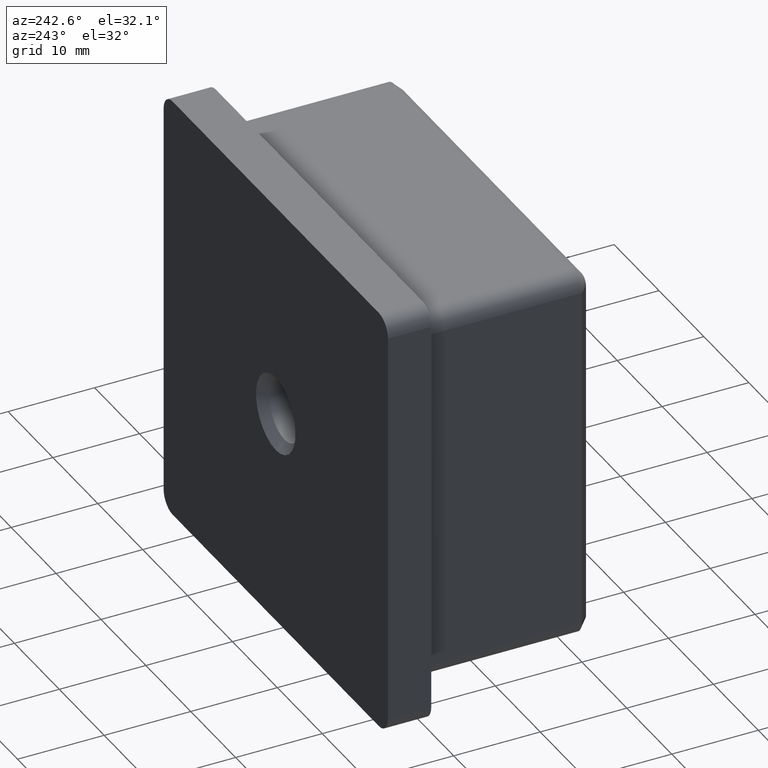
[diagram: clean part render]
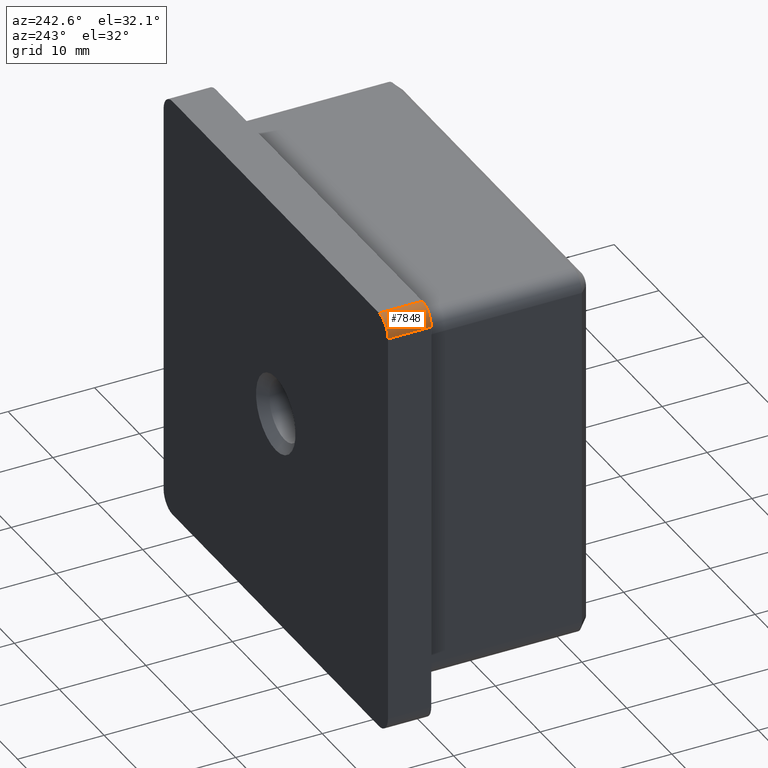
[diagram: same view with one face highlighted and labeled with its STEP entity id]
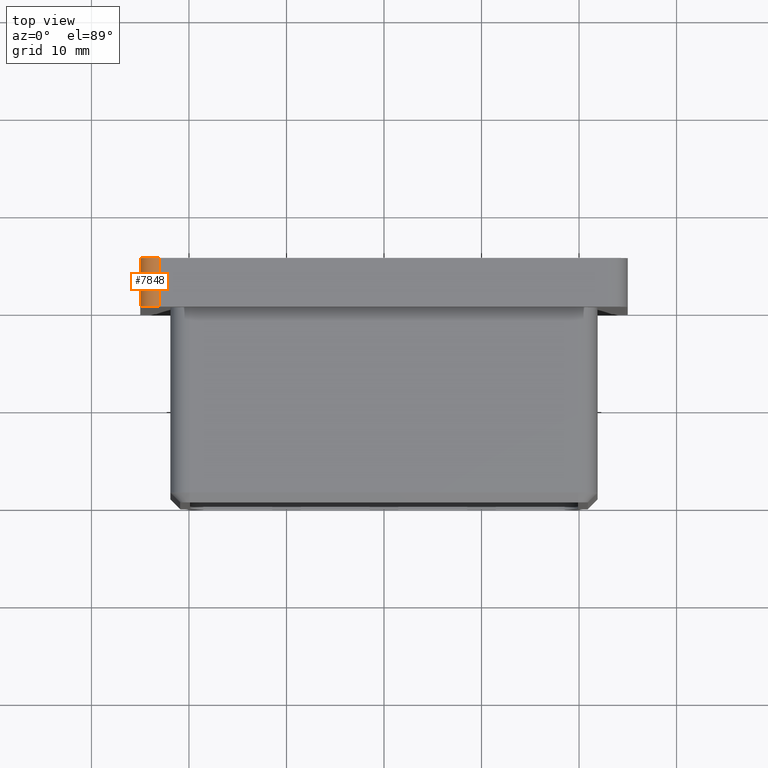
[diagram: same view with one face highlighted and labeled with its STEP entity id]
A machine part, auxiliary view. The second image highlights one B-rep face of the part: STEP entity #7848.
A second angle (top view) of the same face is appended — the face is thin or edge-on in the first view.
In plain terms, the highlighted cylindrical surface (edge-blend (fillet) strip) has radius 2 mm, axis along (0, -1, 0).
Its self-contained STEP definition (entity closure, byte-faithful):
#8 = AXIS2_PLACEMENT_3D ( 'NONE', #8901, #7522, #12250 ) ;
#58 = CARTESIAN_POINT ( 'NONE',  ( -22.99999999999999600, 5.000000000000000000, 23.00000000000000700 ) ) ;
#372 = EDGE_CURVE ( 'NONE', #3466, #17091, #14895, .T. ) ;
#2181 = VECTOR ( 'NONE', #12111, 1000.000000000000000 ) ;
#2419 = EDGE_CURVE ( 'NONE', #2978, #19771, #10965, .T. ) ;
#2725 = CARTESIAN_POINT ( 'NONE',  ( -22.99999999999999600, 5.000000000000000000, 25.00000000000000400 ) ) ;
#2978 = VERTEX_POINT ( 'NONE', #17890 ) ;
#3466 = VERTEX_POINT ( 'NONE', #2725 ) ;
#4354 = EDGE_CURVE ( 'NONE', #19771, #3466, #8960, .T. ) ;
#5489 = CARTESIAN_POINT ( 'NONE',  ( -22.99999999999999600, 5.000000000000000000, 25.00000000000000400 ) ) ;
#7090 = CARTESIAN_POINT ( 'NONE',  ( -22.99999999999999600, 0.0000000000000000000, 23.00000000000000700 ) ) ;
#7522 = DIRECTION ( 'NONE',  ( 0.0000000000000000000, -1.000000000000000000, 0.0000000000000000000 ) ) ;
#7848 = ADVANCED_FACE ( 'NONE', ( #14971 ), #19750, .T. ) ;
#8410 = ORIENTED_EDGE ( 'NONE', *, *, #2419, .F. ) ;
#8901 = CARTESIAN_POINT ( 'NONE',  ( -22.99999999999999600, 5.000000000000000000, 23.00000000000000700 ) ) ;
#8907 = DIRECTION ( 'NONE',  ( 0.0000000000000000000, 0.0000000000000000000, 1.000000000000000000 ) ) ;
#8960 = CIRCLE ( 'NONE', #19646, 2.000000000000001800 ) ;
#9049 = CARTESIAN_POINT ( 'NONE',  ( -24.99999999999999300, 5.000000000000000000, 23.00000000000000400 ) ) ;
#9395 = AXIS2_PLACEMENT_3D ( 'NONE', #7090, #19889, #8907 ) ;
#10844 = EDGE_LOOP ( 'NONE', ( #16489, #8410, #11654, #11141 ) ) ;
#10965 = LINE ( 'NONE', #19890, #2181 ) ;
#11141 = ORIENTED_EDGE ( 'NONE', *, *, #372, .F. ) ;
#11654 = ORIENTED_EDGE ( 'NONE', *, *, #20503, .F. ) ;
#12111 = DIRECTION ( 'NONE',  ( -0.0000000000000000000, 1.000000000000000000, -0.0000000000000000000 ) ) ;
#12250 = DIRECTION ( 'NONE',  ( 0.0000000000000000000, 0.0000000000000000000, -1.000000000000000000 ) ) ;
#12611 = DIRECTION ( 'NONE',  ( 0.0000000000000000000, 0.0000000000000000000, 1.000000000000000000 ) ) ;
#14407 = VECTOR ( 'NONE', #18279, 1000.000000000000000 ) ;
#14712 = CARTESIAN_POINT ( 'NONE',  ( -22.99999999999999600, 0.0000000000000000000, 25.00000000000000400 ) ) ;
#14895 = LINE ( 'NONE', #5489, #14407 ) ;
#14971 = FACE_OUTER_BOUND ( 'NONE', #10844, .T. ) ;
#16489 = ORIENTED_EDGE ( 'NONE', *, *, #4354, .F. ) ;
#17091 = VERTEX_POINT ( 'NONE', #14712 ) ;
#17890 = CARTESIAN_POINT ( 'NONE',  ( -24.99999999999999300, 0.0000000000000000000, 23.00000000000000400 ) ) ;
#18279 = DIRECTION ( 'NONE',  ( 0.0000000000000000000, -1.000000000000000000, 0.0000000000000000000 ) ) ;
#19201 = DIRECTION ( 'NONE',  ( 0.0000000000000000000, 1.000000000000000000, 0.0000000000000000000 ) ) ;
#19646 = AXIS2_PLACEMENT_3D ( 'NONE', #58, #19201, #12611 ) ;
#19750 = CYLINDRICAL_SURFACE ( 'NONE', #8, 2.000000000000001800 ) ;
#19771 = VERTEX_POINT ( 'NONE', #9049 ) ;
#19890 = CARTESIAN_POINT ( 'NONE',  ( -24.99999999999999300, 5.000000000000000000, 23.00000000000000400 ) ) ;
#19889 = DIRECTION ( 'NONE',  ( -0.0000000000000000000, -1.000000000000000000, -0.0000000000000000000 ) ) ;
#20121 = CIRCLE ( 'NONE', #9395, 2.000000000000001800 ) ;
#20503 = EDGE_CURVE ( 'NONE', #17091, #2978, #20121, .T. ) ;